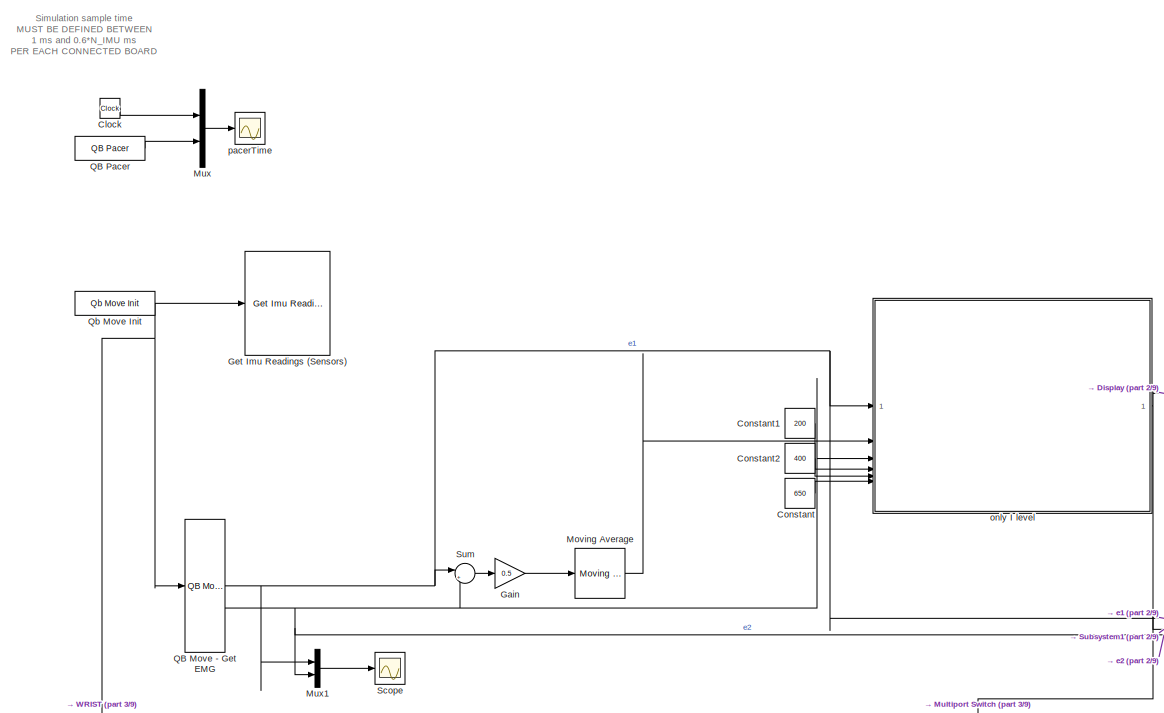
[diagram: root canvas - part 1/9, top left region]
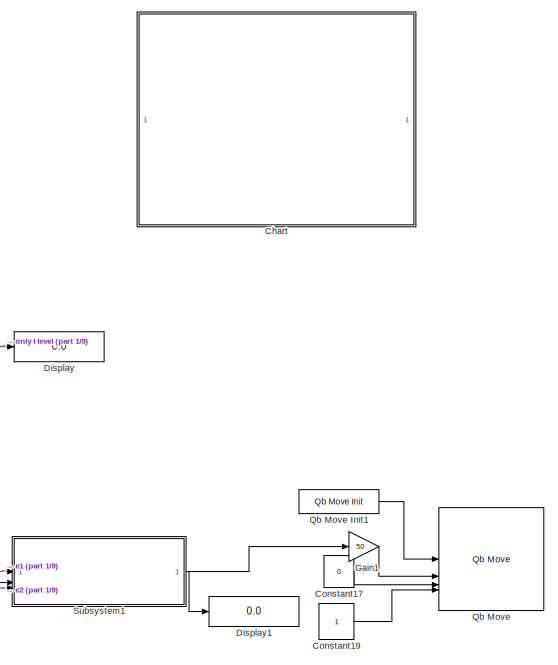
[diagram: root canvas - part 2/9, top left region]
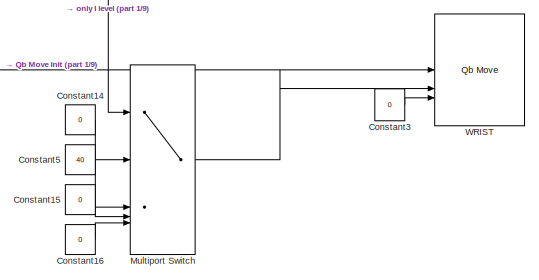
[diagram: root canvas - part 3/9, middle left region]
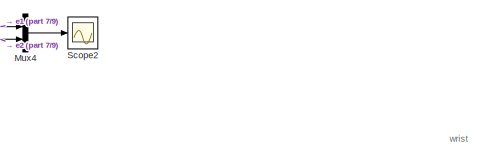
[diagram: root canvas - part 4/9, middle right region]
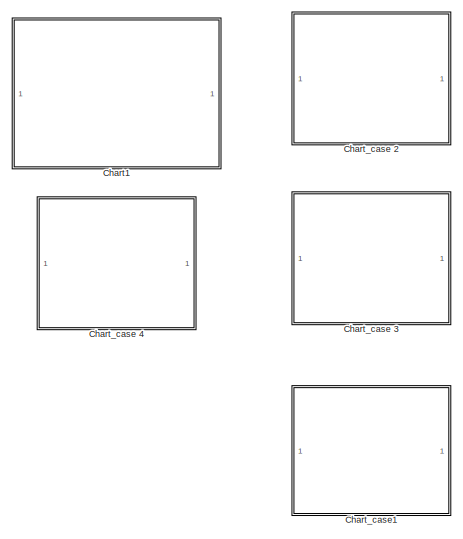
[diagram: root canvas - part 5/9, middle left region]
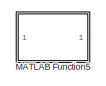
[diagram: root canvas - part 6/9, middle right region]
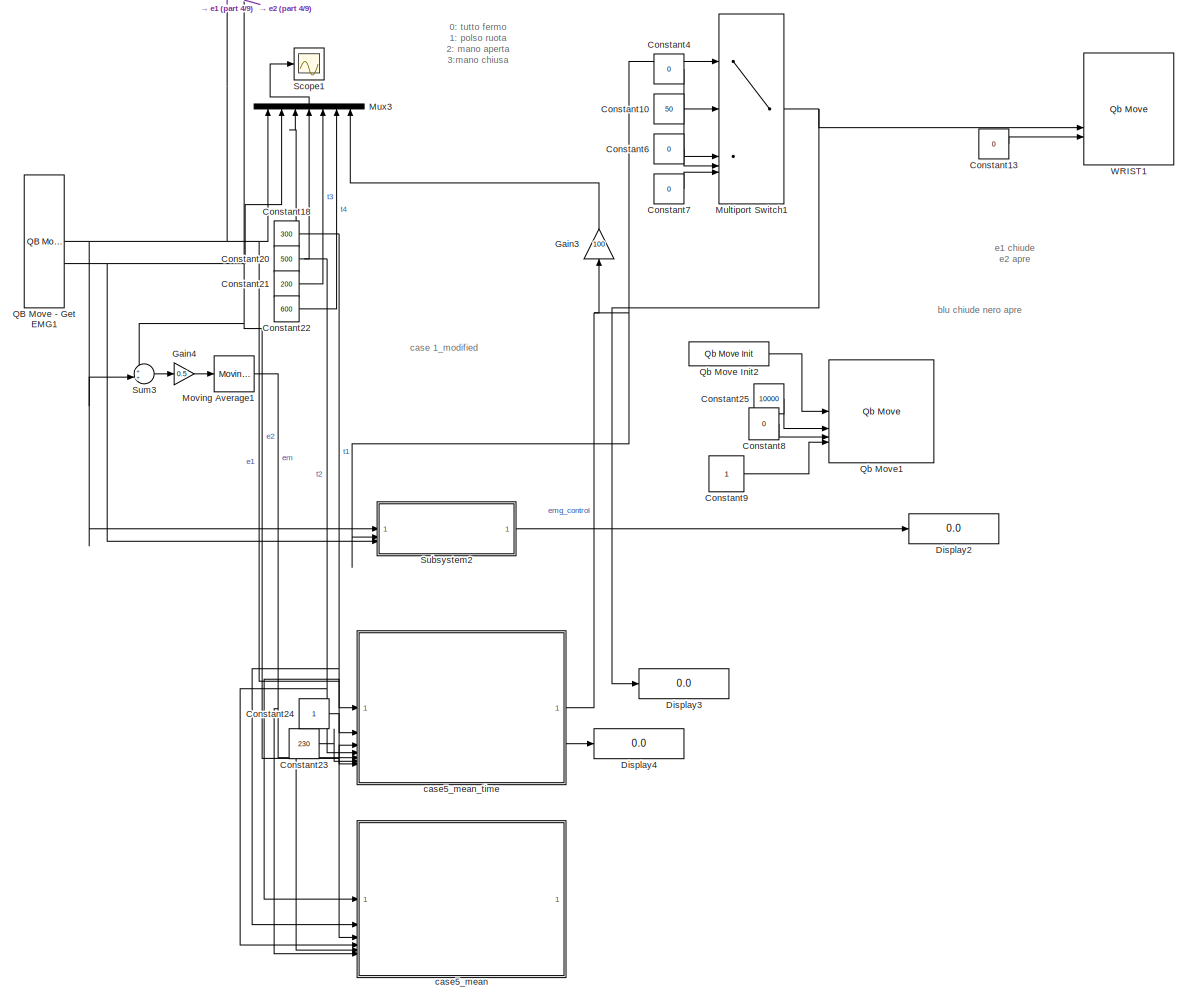
[diagram: root canvas - part 7/9, bottom right region]
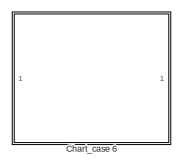
[diagram: root canvas - part 8/9, central region]
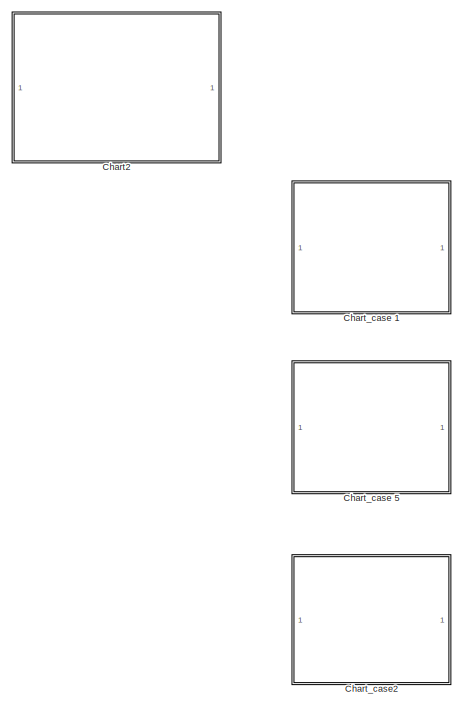
[diagram: root canvas - part 9/9, bottom right region]
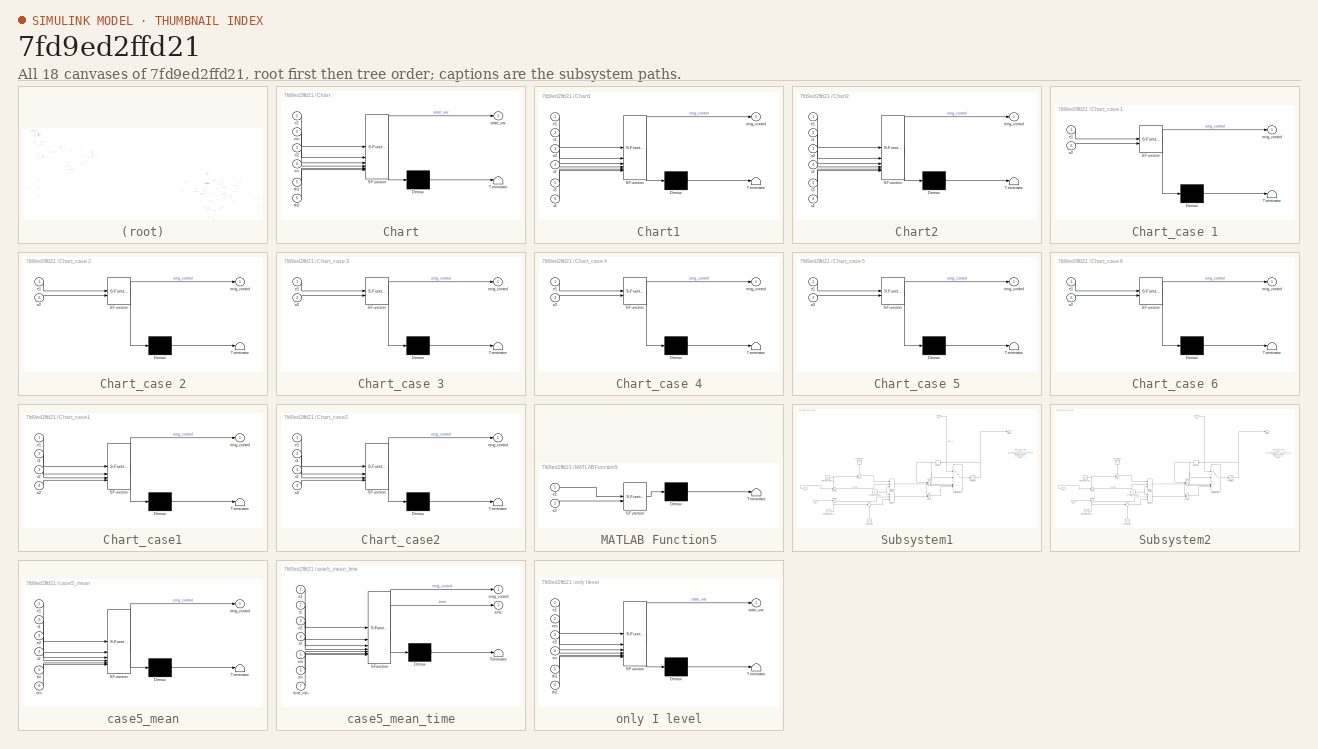
[diagram: thumbnail index - all 18 canvases of the model, root first then tree order]
MODEL slx_7fd9ed2ffd21
KIND model
CONFIG AbsTol = auto
CONFIG EnableMultiTasking = off
CONFIG FixedStep = auto
CONFIG MaxStep = auto
CONFIG MinStep = auto
CONFIG RelTol = 1e-3
CONFIG SampleTimeConstraint = Unconstrained
CONFIG SolverName = VariableStepAuto
CONFIG StartTime = 0.0
CONFIG StopTime = inf
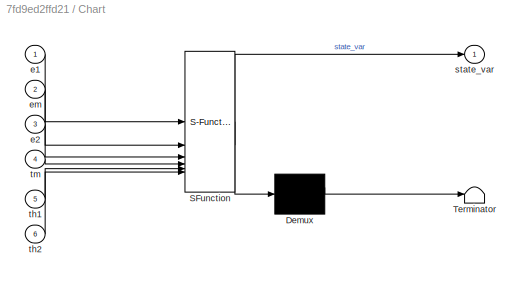
BLOCK [SubSystem] Chart
  ErrorFcn = Stateflow.Translate.translate
  PermitHierarchicalResolution = ExplicitOnly
  SFBlockType = Chart
  TreatAsAtomicUnit = on
BLOCK [Demux] Chart/ Demux 
  Outputs = 1
BLOCK [S-Function] Chart/ SFunction 
  EnableBusSupport = on
  FunctionName = sf_sfun
  PortCounts = [6 2]
  SFcnIsStateOwnerBlock = off
  SFunctionDeploymentMode = off
  Tag = Stateflow S-Function 3
BLOCK [Terminator] Chart/ Terminator 
BLOCK [Inport] Chart/e1
BLOCK [Inport] Chart/e2
  Port = 3
BLOCK [Inport] Chart/em
  Port = 2
BLOCK [Outport] Chart/state_var
BLOCK [Inport] Chart/th1
  Port = 5
BLOCK [Inport] Chart/th2
  Port = 6
BLOCK [Inport] Chart/tm
  Port = 4
BLOCK [SubSystem] Chart1
  Commented = on
  ErrorFcn = Stateflow.Translate.translate
  PermitHierarchicalResolution = ExplicitOnly
  PortSchema = {"entries":[{"content":{"sides":[{"content":{"connectorIds":["In1","In2","In4","In5","In6","In3"]},"type":"ConnectorPlacement.EquallySpacedRectSide","uuid":"bb964aad-0f33-4b15-8f2f-07cc57dca142"},{"content":{"connectorIds":["Out1"],"side":"RIGHT"},"type":"ConnectorPlacement.EquallySpacedRectSide","uuid":"3d1bf315-7cf4-4964-aaea-501116c51cbb"},{"content":{"side":"TOP"},"type":"ConnectorPlacement.Eq...<+252ch>
  SFBlockType = Chart
  TreatAsAtomicUnit = on
BLOCK [Demux] Chart1/ Demux 
  Outputs = 1
BLOCK [S-Function] Chart1/ SFunction 
  EnableBusSupport = on
  FunctionName = sf_sfun
  PortCounts = [6 2]
  SFcnIsStateOwnerBlock = off
  SFunctionDeploymentMode = off
  Tag = Stateflow S-Function 7
BLOCK [Terminator] Chart1/ Terminator 
BLOCK [Inport] Chart1/e1
BLOCK [Inport] Chart1/e2
  Port = 3
BLOCK [Outport] Chart1/emg_control
BLOCK [Inport] Chart1/t1
  Port = 2
BLOCK [Inport] Chart1/t2
  Port = 4
BLOCK [Inport] Chart1/t3
  Port = 5
BLOCK [Inport] Chart1/t4
  Port = 6
BLOCK [SubSystem] Chart2
  ErrorFcn = Stateflow.Translate.translate
  PermitHierarchicalResolution = ExplicitOnly
  PortSchema = {"entries":[{"content":{"sides":[{"content":{"connectorIds":["In1","In2","In4","In5","In6","In3"]},"type":"ConnectorPlacement.EquallySpacedRectSide","uuid":"bb964aad-0f33-4b15-8f2f-07cc57dca142"},{"content":{"connectorIds":["Out1"],"side":"RIGHT"},"type":"ConnectorPlacement.EquallySpacedRectSide","uuid":"3d1bf315-7cf4-4964-aaea-501116c51cbb"},{"content":{"side":"TOP"},"type":"ConnectorPlacement.Eq...<+252ch>
  SFBlockType = Chart
  TreatAsAtomicUnit = on
BLOCK [Demux] Chart2/ Demux 
  Outputs = 1
BLOCK [S-Function] Chart2/ SFunction 
  EnableBusSupport = on
  FunctionName = sf_sfun
  PortCounts = [6 2]
  SFcnIsStateOwnerBlock = off
  SFunctionDeploymentMode = off
  Tag = Stateflow S-Function 2
BLOCK [Terminator] Chart2/ Terminator 
BLOCK [Inport] Chart2/e1
BLOCK [Inport] Chart2/e2
  Port = 3
BLOCK [Outport] Chart2/emg_control
BLOCK [Inport] Chart2/t1
  Port = 2
BLOCK [Inport] Chart2/t2
  Port = 4
BLOCK [Inport] Chart2/t3
  Port = 5
BLOCK [Inport] Chart2/t4
  Port = 6
BLOCK [SubSystem] Chart_case 1
  ErrorFcn = Stateflow.Translate.translate
  PermitHierarchicalResolution = ExplicitOnly
  SFBlockType = Chart
  TreatAsAtomicUnit = on
BLOCK [Demux] Chart_case 1/ Demux 
  Outputs = 1
BLOCK [S-Function] Chart_case 1/ SFunction 
  EnableBusSupport = on
  FunctionName = sf_sfun
  Parameters = t1,t2
  PortCounts = [2 2]
  SFcnIsStateOwnerBlock = off
  SFunctionDeploymentMode = off
  Tag = Stateflow S-Function 4
BLOCK [Terminator] Chart_case 1/ Terminator 
BLOCK [Inport] Chart_case 1/e1
BLOCK [Inport] Chart_case 1/e2
  Port = 2
BLOCK [Outport] Chart_case 1/emg_control
BLOCK [SubSystem] Chart_case 2
  Commented = on
  ErrorFcn = Stateflow.Translate.translate
  PermitHierarchicalResolution = ExplicitOnly
  SFBlockType = Chart
  TreatAsAtomicUnit = on
BLOCK [Demux] Chart_case 2/ Demux 
  Outputs = 1
BLOCK [S-Function] Chart_case 2/ SFunction 
  EnableBusSupport = on
  FunctionName = sf_sfun
  Parameters = t1,t2
  PortCounts = [2 2]
  SFcnIsStateOwnerBlock = off
  SFunctionDeploymentMode = off
  Tag = Stateflow S-Function 8
BLOCK [Terminator] Chart_case 2/ Terminator 
BLOCK [Inport] Chart_case 2/e1
BLOCK [Inport] Chart_case 2/e2
  Port = 2
BLOCK [Outport] Chart_case 2/emg_control
BLOCK [SubSystem] Chart_case 3
  Commented = on
  ErrorFcn = Stateflow.Translate.translate
  PermitHierarchicalResolution = ExplicitOnly
  SFBlockType = Chart
  TreatAsAtomicUnit = on
BLOCK [Demux] Chart_case 3/ Demux 
  Outputs = 1
BLOCK [S-Function] Chart_case 3/ SFunction 
  EnableBusSupport = on
  FunctionName = sf_sfun
  Parameters = t1,t2
  PortCounts = [2 2]
  SFcnIsStateOwnerBlock = off
  SFunctionDeploymentMode = off
  Tag = Stateflow S-Function 9
BLOCK [Terminator] Chart_case 3/ Terminator 
BLOCK [Inport] Chart_case 3/e1
BLOCK [Inport] Chart_case 3/e2
  Port = 2
BLOCK [Outport] Chart_case 3/emg_control
BLOCK [SubSystem] Chart_case 4
  Commented = on
  ErrorFcn = Stateflow.Translate.translate
  PermitHierarchicalResolution = ExplicitOnly
  SFBlockType = Chart
  TreatAsAtomicUnit = on
BLOCK [Demux] Chart_case 4/ Demux 
  Outputs = 1
BLOCK [S-Function] Chart_case 4/ SFunction 
  EnableBusSupport = on
  FunctionName = sf_sfun
  Parameters = t1,t2
  PortCounts = [2 2]
  SFcnIsStateOwnerBlock = off
  SFunctionDeploymentMode = off
  Tag = Stateflow S-Function 6
BLOCK [Terminator] Chart_case 4/ Terminator 
BLOCK [Inport] Chart_case 4/e1
BLOCK [Inport] Chart_case 4/e2
  Port = 2
BLOCK [Outport] Chart_case 4/emg_control
BLOCK [SubSystem] Chart_case 5
  ErrorFcn = Stateflow.Translate.translate
  PermitHierarchicalResolution = ExplicitOnly
  SFBlockType = Chart
  TreatAsAtomicUnit = on
BLOCK [Demux] Chart_case 5/ Demux 
  Outputs = 1
BLOCK [S-Function] Chart_case 5/ SFunction 
  EnableBusSupport = on
  FunctionName = sf_sfun
  Parameters = t1,t2
  PortCounts = [2 2]
  SFcnIsStateOwnerBlock = off
  SFunctionDeploymentMode = off
  Tag = Stateflow S-Function 5
BLOCK [Terminator] Chart_case 5/ Terminator 
BLOCK [Inport] Chart_case 5/e1
BLOCK [Inport] Chart_case 5/e2
  Port = 2
BLOCK [Outport] Chart_case 5/emg_control
BLOCK [SubSystem] Chart_case 6
  Commented = on
  ErrorFcn = Stateflow.Translate.translate
  PermitHierarchicalResolution = ExplicitOnly
  SFBlockType = Chart
  TreatAsAtomicUnit = on
BLOCK [Demux] Chart_case 6/ Demux 
  Outputs = 1
BLOCK [S-Function] Chart_case 6/ SFunction 
  EnableBusSupport = on
  FunctionName = sf_sfun
  Parameters = t1,t2
  PortCounts = [2 2]
  SFcnIsStateOwnerBlock = off
  SFunctionDeploymentMode = off
  Tag = Stateflow S-Function 11
BLOCK [Terminator] Chart_case 6/ Terminator 
BLOCK [Inport] Chart_case 6/e1
BLOCK [Inport] Chart_case 6/e2
  Port = 2
BLOCK [Outport] Chart_case 6/emg_control
BLOCK [SubSystem] Chart_case1
  Commented = on
  ErrorFcn = Stateflow.Translate.translate
  PermitHierarchicalResolution = ExplicitOnly
  SFBlockType = Chart
  TreatAsAtomicUnit = on
BLOCK [Demux] Chart_case1/ Demux 
  Outputs = 1
BLOCK [S-Function] Chart_case1/ SFunction 
  EnableBusSupport = on
  FunctionName = sf_sfun
  PortCounts = [4 2]
  SFcnIsStateOwnerBlock = off
  SFunctionDeploymentMode = off
  Tag = Stateflow S-Function 10
BLOCK [Terminator] Chart_case1/ Terminator 
BLOCK [Inport] Chart_case1/e1
BLOCK [Inport] Chart_case1/e2
  Port = 4
BLOCK [Outport] Chart_case1/emg_control
BLOCK [Inport] Chart_case1/t1
  Port = 2
BLOCK [Inport] Chart_case1/t2
  Port = 3
BLOCK [SubSystem] Chart_case2
  ErrorFcn = Stateflow.Translate.translate
  PermitHierarchicalResolution = ExplicitOnly
  SFBlockType = Chart
  TreatAsAtomicUnit = on
BLOCK [Demux] Chart_case2/ Demux 
  Outputs = 1
BLOCK [S-Function] Chart_case2/ SFunction 
  EnableBusSupport = on
  FunctionName = sf_sfun
  PortCounts = [4 2]
  SFcnIsStateOwnerBlock = off
  SFunctionDeploymentMode = off
  Tag = Stateflow S-Function 12
BLOCK [Terminator] Chart_case2/ Terminator 
BLOCK [Inport] Chart_case2/e1
BLOCK [Inport] Chart_case2/e2
  Port = 4
BLOCK [Outport] Chart_case2/emg_control
BLOCK [Inport] Chart_case2/t1
  Port = 2
BLOCK [Inport] Chart_case2/t2
  Port = 3
BLOCK [Clock] Clock
BLOCK [Constant] Constant
  Value = 650
BLOCK [Constant] Constant1
  Value = 200
BLOCK [Constant] Constant10
  Value = 50
BLOCK [Constant] Constant13
  Value = 0
BLOCK [Constant] Constant14
  Value = 0
BLOCK [Constant] Constant15
  Value = 0
BLOCK [Constant] Constant16
  Value = 0
BLOCK [Constant] Constant17
  Value = 0
BLOCK [Constant] Constant18
  Value = 300
BLOCK [Constant] Constant19
BLOCK [Constant] Constant2
  Value = 400
BLOCK [Constant] Constant20
  Value = 500
BLOCK [Constant] Constant21
  Value = 200
BLOCK [Constant] Constant22
  Value = 600
BLOCK [Constant] Constant23
  Value = 230
BLOCK [Constant] Constant24
BLOCK [Constant] Constant25
  Value = 10000
BLOCK [Constant] Constant3
  Value = 0
BLOCK [Constant] Constant4
  Value = 0
BLOCK [Constant] Constant5
  Value = 40
BLOCK [Constant] Constant6
  Value = 0
BLOCK [Constant] Constant7
  Value = 0
BLOCK [Constant] Constant8
  Value = 0
BLOCK [Constant] Constant9
BLOCK [Display] Display
  Decimation = 1
BLOCK [Display] Display1
  Decimation = 1
BLOCK [Display] Display2
  Decimation = 1
BLOCK [Display] Display3
  Decimation = 1
BLOCK [Display] Display4
  Decimation = 1
BLOCK [Gain] Gain
  Gain = 0.5
BLOCK [Gain] Gain1
  Gain = 50
BLOCK [Gain] Gain3
  Gain = 100
  NameLocation = right
BLOCK [Gain] Gain4
  Gain = 0.5
BLOCK [Reference] Get Imu Readings (Sensors)  REF=CP_library/Get Imu Readings (Sensors)
  SourceBlock = CP_library/Get Imu Readings (Sensors)
  SourceProductName = Centro Piaggio Library
  SourceType = qb get imu reading
BLOCK [SubSystem] MATLAB Function5
  Commented = on
  ErrorFcn = Stateflow.Translate.translate
  PermitHierarchicalResolution = ExplicitOnly
  SFBlockType = MATLAB Function
  TreatAsAtomicUnit = on
BLOCK [Demux] MATLAB Function5/ Demux 
  Outputs = 1
BLOCK [S-Function] MATLAB Function5/ SFunction 
  EnableBusSupport = on
  FunctionName = sf_sfun
  PortCounts = [2 1]
  SFcnIsStateOwnerBlock = off
  SFunctionDeploymentMode = off
  Tag = Stateflow S-Function 13
BLOCK [Terminator] MATLAB Function5/ Terminator 
BLOCK [Inport] MATLAB Function5/e1
BLOCK [Inport] MATLAB Function5/e2
  Port = 2
BLOCK [Reference] Moving Average  REF=dspstat3/Moving
Average
  SourceBlock = dspstat3/Moving\nAverage
  SourceType = dsp.simulink.MovingAverage
BLOCK [Reference] Moving Average1  REF=dspstat3/Moving
Average
  SourceBlock = dspstat3/Moving\nAverage
  SourceType = dsp.simulink.MovingAverage
BLOCK [MultiPortSwitch] Multiport Switch
  DataPortOrder = Zero-based contiguous
  InputSameDT = off
  Inputs = 4
  SaturateOnIntegerOverflow = off
  zeroidx = on
BLOCK [MultiPortSwitch] Multiport Switch1
  DataPortOrder = Zero-based contiguous
  InputSameDT = off
  Inputs = 4
  SaturateOnIntegerOverflow = off
  zeroidx = on
BLOCK [Mux] Mux
  DisplayOption = bar
  Inputs = 2
BLOCK [Mux] Mux1
  DisplayOption = bar
  Inputs = 2
BLOCK [Mux] Mux3
  DisplayOption = bar
  Inputs = 7
  NameLocation = right
BLOCK [Mux] Mux4
  DisplayOption = bar
  Inputs = 2
BLOCK [Reference] QB Move - Get EMG  REF=qbmove_library/QB Move - Get EMG
  SourceBlock = qbmove_library/QB Move - Get EMG
  SourceProductName = Qb Move Library
  SourceType = qb move
BLOCK [Reference] QB Move - Get EMG1  REF=qbmove_library/QB Move - Get EMG
  SourceBlock = qbmove_library/QB Move - Get EMG
  SourceProductName = Qb Move Library
  SourceType = qb move
BLOCK [Reference] QB Pacer  REF=QB_pacer_lib/QB Pacer
  SourceBlock = QB_pacer_lib/QB Pacer
  SourceProductName = QB Pacer
  SourceType = RealTime_Pacer
BLOCK [Reference] Qb Move  REF=qbmove_library/Qb Move
  LibrarySourceBlock = qbmove_library/qbmove
  SourceBlock = qbmove_library/Qb Move
  SourceProductName = Qb Move Library
  SourceType = qb move
BLOCK [Reference] Qb Move Init  REF=qbmove_library/Qb Move Init
  NameLocation = top
  SourceBlock = qbmove_library/Qb Move Init
  SourceProductName = Qb Move Library
  SourceType = qb Init - ISS
BLOCK [Reference] Qb Move Init1  REF=qbmove_library/Qb Move Init
  NameLocation = top
  SourceBlock = qbmove_library/Qb Move Init
  SourceProductName = Qb Move Library
  SourceType = qb Init - ISS
BLOCK [Reference] Qb Move Init2  REF=qbmove_library/Qb Move Init
  NameLocation = top
  SourceBlock = qbmove_library/Qb Move Init
  SourceProductName = Qb Move Library
  SourceType = qb Init - ISS
BLOCK [Reference] Qb Move1  REF=qbmove_library/Qb Move
  LibrarySourceBlock = qbmove_library/qbmove
  SourceBlock = qbmove_library/Qb Move
  SourceProductName = Qb Move Library
  SourceType = qb move
BLOCK [Scope] Scope
  Floating = off
  NumInputPorts = 1
  ScopeSpecificationString = Simulink.scopes.TimeScopeBlockCfg('CurrentConfiguration', extmgr.ConfigurationSet(extmgr.Configuration('Core','General UI',true),extmgr.Configuration('Core','Source UI',true),extmgr.Configuration('Sources','WiredSimulink',true,'DataLoggingVariableName','ScopeData1'),extmgr.Configuration('Visuals','Time Domain',true,'SerializedDisplays',{struct('MinYLimReal','-125.75','MaxYLimReal','1151.75','YLabe...<+1414ch>
BLOCK [Scope] Scope1
  Floating = off
  NumInputPorts = 1
  ScopeSpecificationString = Simulink.scopes.TimeScopeBlockCfg('CurrentConfiguration', extmgr.ConfigurationSet(extmgr.Configuration('Core','General UI',true),extmgr.Configuration('Core','Source UI',true),extmgr.Configuration('Sources','WiredSimulink',true,'DataLoggingVariableName','ScopeData1'),extmgr.Configuration('Visuals','Time Domain',true,'SerializedDisplays',{struct('MinYLimReal','-128.00000','MaxYLimReal','1152.00000',...<+1807ch>
BLOCK [Scope] Scope2
  Floating = off
  NumInputPorts = 1
  ScopeSpecificationString = Simulink.scopes.TimeScopeBlockCfg('CurrentConfiguration', extmgr.ConfigurationSet(extmgr.Configuration('Core','General UI',true),extmgr.Configuration('Core','Source UI',true),extmgr.Configuration('Sources','WiredSimulink',true,'DataLoggingVariableName','ScopeData2'),extmgr.Configuration('Visuals','Time Domain',true,'SerializedDisplays',{struct('MinYLimReal','-128.00000','MaxYLimReal','1152.00000',...<+1406ch>
BLOCK [SubSystem] Subsystem1
  ShowPortLabels = SignalName
BLOCK [Constant] Subsystem1/2*EMG_speed1
  Value = 100
BLOCK [Constant] Subsystem1/Constant18
  NameLocation = right
  Value = 1024
BLOCK [Constant] Subsystem1/Constant22
  NameLocation = left
  Value = 1024
BLOCK [Product] Subsystem1/Divide2
  Inputs = /**
BLOCK [Product] Subsystem1/Divide3
  Inputs = **/
BLOCK [Constant] Subsystem1/EMG_threshold_3
  Value = 200
BLOCK [Constant] Subsystem1/EMG_threshold_4
  Value = 200
BLOCK [Inport] Subsystem1/In2
  Port = 2
BLOCK [Memory] Subsystem1/Memory1
BLOCK [MultiPortSwitch] Subsystem1/Multiport Switch1
  DataPortOrder = Zero-based contiguous
  InputSameDT = off
  Inputs = 4
  SaturateOnIntegerOverflow = off
  zeroidx = on
BLOCK [Outport] Subsystem1/Out1
BLOCK [Saturate] Subsystem1/Saturation1
  LowerLimit = 0
  UpperLimit = 17500
BLOCK [Sum] Subsystem1/Sum10
  Inputs = -+|
BLOCK [Sum] Subsystem1/Sum11
  Inputs = +-|
BLOCK [Sum] Subsystem1/Sum12
  IconShape = rectangular
  Inputs = +-
BLOCK [Sum] Subsystem1/Sum13
  Inputs = |+-
BLOCK [Sum] Subsystem1/Sum14
  Inputs = |-+
BLOCK [Sum] Subsystem1/Sum9
  IconShape = rectangular
BLOCK [Inport] Subsystem1/e1
BLOCK [Inport] Subsystem1/e2
  Port = 3
BLOCK [SubSystem] Subsystem2
  ShowPortLabels = SignalName
BLOCK [Constant] Subsystem2/2*EMG_speed1
  Value = 100
BLOCK [Constant] Subsystem2/Constant18
  NameLocation = right
  Value = 1024
BLOCK [Constant] Subsystem2/Constant22
  NameLocation = left
  Value = 1024
BLOCK [Product] Subsystem2/Divide2
  Inputs = /**
BLOCK [Product] Subsystem2/Divide3
  Inputs = **/
BLOCK [Constant] Subsystem2/EMG_threshold_3
  Value = 200
BLOCK [Constant] Subsystem2/EMG_threshold_4
  Value = 200
BLOCK [Inport] Subsystem2/In2
  Port = 2
BLOCK [Memory] Subsystem2/Memory1
BLOCK [MultiPortSwitch] Subsystem2/Multiport Switch1
  DataPortOrder = Zero-based contiguous
  InputSameDT = off
  Inputs = 4
  SaturateOnIntegerOverflow = off
  zeroidx = on
BLOCK [Outport] Subsystem2/Out1
BLOCK [Saturate] Subsystem2/Saturation1
  LowerLimit = 0
  UpperLimit = 17500
BLOCK [Sum] Subsystem2/Sum10
  Inputs = -+|
BLOCK [Sum] Subsystem2/Sum11
  Inputs = +-|
BLOCK [Sum] Subsystem2/Sum12
  IconShape = rectangular
  Inputs = +-
BLOCK [Sum] Subsystem2/Sum13
  Inputs = |+-
BLOCK [Sum] Subsystem2/Sum14
  Inputs = |-+
BLOCK [Sum] Subsystem2/Sum9
  IconShape = rectangular
BLOCK [Inport] Subsystem2/e1
BLOCK [Inport] Subsystem2/e2
  Port = 3
BLOCK [Sum] Sum
  Inputs = |++
BLOCK [Sum] Sum3
  Inputs = ++|
BLOCK [Reference] WRIST  REF=qbmove_library/Qb Move
  SourceBlock = qbmove_library/Qb Move
  SourceProductName = Qb Move Library
  SourceType = qb move
BLOCK [Reference] WRIST1  REF=qbmove_library/Qb Move
  SourceBlock = qbmove_library/Qb Move
  SourceProductName = Qb Move Library
  SourceType = qb move
BLOCK [SubSystem] case5_mean
  ErrorFcn = Stateflow.Translate.translate
  PermitHierarchicalResolution = ExplicitOnly
  PortSchema = {"entries":[{"content":{"sides":[{"content":{"connectorIds":["In1","In2","In4","In6","In5","In3"]},"type":"ConnectorPlacement.EquallySpacedRectSide","uuid":"bb964aad-0f33-4b15-8f2f-07cc57dca142"},{"content":{"connectorIds":["Out1"],"side":"RIGHT"},"type":"ConnectorPlacement.EquallySpacedRectSide","uuid":"3d1bf315-7cf4-4964-aaea-501116c51cbb"},{"content":{"side":"TOP"},"type":"ConnectorPlacement.Eq...<+252ch>
  SFBlockType = Chart
  TreatAsAtomicUnit = on
BLOCK [Demux] case5_mean/ Demux 
  Outputs = 1
BLOCK [S-Function] case5_mean/ SFunction 
  EnableBusSupport = on
  FunctionName = sf_sfun
  PortCounts = [6 2]
  SFcnIsStateOwnerBlock = off
  SFunctionDeploymentMode = off
  Tag = Stateflow S-Function 14
BLOCK [Terminator] case5_mean/ Terminator 
BLOCK [Inport] case5_mean/e1
BLOCK [Inport] case5_mean/e2
  Port = 3
BLOCK [Inport] case5_mean/em
  Port = 6
BLOCK [Outport] case5_mean/emg_control
BLOCK [Inport] case5_mean/t1
  Port = 2
BLOCK [Inport] case5_mean/t2
  Port = 4
BLOCK [Inport] case5_mean/tm
  Port = 5
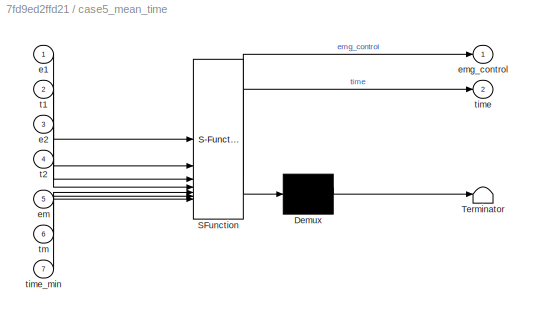
BLOCK [SubSystem] case5_mean_time
  ErrorFcn = Stateflow.Translate.translate
  PermitHierarchicalResolution = ExplicitOnly
  PortSchema = {"entries":[{"content":{"sides":[{"content":{"connectorIds":["In1","In2","In4","In5","In6","In7","In3"]},"type":"ConnectorPlacement.EquallySpacedRectSide","uuid":"bb964aad-0f33-4b15-8f2f-07cc57dca142"},{"content":{"connectorIds":["Out1","Out2"],"side":"RIGHT"},"type":"ConnectorPlacement.EquallySpacedRectSide","uuid":"3d1bf315-7cf4-4964-aaea-501116c51cbb"},{"content":{"side":"TOP"},"type":"Connecto...<+265ch>
  SFBlockType = Chart
  TreatAsAtomicUnit = on
BLOCK [Demux] case5_mean_time/ Demux 
  Outputs = 1
BLOCK [S-Function] case5_mean_time/ SFunction 
  EnableBusSupport = on
  FunctionName = sf_sfun
  PortCounts = [7 3]
  SFcnIsStateOwnerBlock = off
  SFunctionDeploymentMode = off
  Tag = Stateflow S-Function 15
BLOCK [Terminator] case5_mean_time/ Terminator 
BLOCK [Inport] case5_mean_time/e1
BLOCK [Inport] case5_mean_time/e2
  Port = 3
BLOCK [Inport] case5_mean_time/em
  Port = 5
BLOCK [Outport] case5_mean_time/emg_control
BLOCK [Inport] case5_mean_time/t1
  Port = 2
BLOCK [Inport] case5_mean_time/t2
  Port = 4
BLOCK [Outport] case5_mean_time/time
  Port = 2
BLOCK [Inport] case5_mean_time/time_min
  Port = 7
BLOCK [Inport] case5_mean_time/tm
  Port = 6
BLOCK [SubSystem] only I level
  ErrorFcn = Stateflow.Translate.translate
  PermitHierarchicalResolution = ExplicitOnly
  SFBlockType = Chart
  TreatAsAtomicUnit = on
BLOCK [Demux] only I level/ Demux 
  Outputs = 1
BLOCK [S-Function] only I level/ SFunction 
  EnableBusSupport = on
  FunctionName = sf_sfun
  PortCounts = [6 2]
  SFcnIsStateOwnerBlock = off
  SFunctionDeploymentMode = off
  Tag = Stateflow S-Function 1
BLOCK [Terminator] only I level/ Terminator 
BLOCK [Inport] only I level/e1
BLOCK [Inport] only I level/e2
  Port = 3
BLOCK [Inport] only I level/em
  Port = 2
BLOCK [Outport] only I level/state_var
BLOCK [Inport] only I level/th1
  Port = 5
BLOCK [Inport] only I level/th2
  Port = 6
BLOCK [Inport] only I level/tm
  Port = 4
BLOCK [Scope] pacerTime
  Floating = off
  NumInputPorts = 1
  ScopeSpecificationString = Simulink.scopes.TimeScopeBlockCfg('CurrentConfiguration', extmgr.ConfigurationSet(extmgr.Configuration('Core','General UI',true),extmgr.Configuration('Core','Source UI',true),extmgr.Configuration('Sources','WiredSimulink',true,'DataLoggingSaveFormat','Array','DataLoggingDecimation','1','DataLoggingDecimateData',true),extmgr.Configuration('Visuals','Time Domain',true,'SerializedDisplays',{struct('M...<+1503ch>
ANNOTATION (root): e1 chiude e2 apre
ANNOTATION (root): wrist
ANNOTATION (root): 0: tutto fermo 1: polso ruota 2: mano aperta 3:mano chiusa
ANNOTATION (root): case 1_modified
ANNOTATION (root): blu chiude nero apre
ANNOTATION (root): Simulation sample time MUST BE DEFINED BETWEEN 1 ms and 0.6*N_IMU ms PER EACH CONNECTED BOARD
ANNOTATION Subsystem1: switch (current_emg) { case 0: // Look for the first EMG passing the threshold if (err_emg_1 > 0) { current_emg = 1; break; } if (err_emg_2 > 0) { current_emg = 2; break; } break; case 1: // EMG 1 is first if (err_emg_1 < 0) { current_emg = 0; break; } g_ref.pos[0] += (err_emg_1 * g_mem.emg_speed * 2) / (1024 - c_mem.emg_threshold[0]); break; case 2: // EMG 2 is first if (err_emg_2 < 0) { current_...<+127ch>
ANNOTATION Subsystem2: switch (current_emg) { case 0: // Look for the first EMG passing the threshold if (err_emg_1 > 0) { current_emg = 1; break; } if (err_emg_2 > 0) { current_emg = 2; break; } break; case 1: // EMG 1 is first if (err_emg_1 < 0) { current_emg = 0; break; } g_ref.pos[0] += (err_emg_1 * g_mem.emg_speed * 2) / (1024 - c_mem.emg_threshold[0]); break; case 2: // EMG 2 is first if (err_emg_2 < 0) { current_...<+127ch>
LINE Clock:1 -> Mux:1
LINE Constant10:1 -> Multiport Switch1:3
LINE Constant13:1 -> WRIST1:3
LINE Constant14:1 -> Multiport Switch:2
LINE Constant15:1 -> Multiport Switch:4
LINE Constant16:1 -> Multiport Switch:5
LINE Constant17:1 -> Qb Move:3
NET Constant18:1 -> Mux3:3, case5_mean:2, case5_mean_time:2
LINE Constant19:1 -> Qb Move:4
LINE Constant1:1 -> only I level:4
NET Constant20:1 -> Mux3:4, case5_mean:4, case5_mean_time:4
LINE Constant21:1 -> Mux3:5
LINE Constant22:1 -> Mux3:6
NET Constant23:1 -> case5_mean:5, case5_mean_time:6
LINE Constant24:1 -> case5_mean_time:7
LINE Constant25:1 -> Qb Move1:2
LINE Constant2:1 -> only I level:5
LINE Constant3:1 -> WRIST:3
LINE Constant4:1 -> Multiport Switch1:2
LINE Constant5:1 -> Multiport Switch:3
LINE Constant6:1 -> Multiport Switch1:4
LINE Constant7:1 -> Multiport Switch1:5
LINE Constant8:1 -> Qb Move1:3
LINE Constant9:1 -> Qb Move1:4
LINE Constant:1 -> only I level:6
LINE Gain1:1 -> Qb Move:2
LINE Gain3:1 -> Mux3:7
LINE Gain4:1 -> Moving Average1:1
LINE Gain:1 -> Moving Average:1
NET Moving Average1:1 -> case5_mean:6, case5_mean_time:5
LINE Moving Average:1 -> only I level:2
NET Multiport Switch1:1 -> Display3:1, WRIST1:2
LINE Multiport Switch:1 -> WRIST:2
LINE Mux1:1 -> Scope:1
LINE Mux3:1 -> Scope1:1
LINE Mux4:1 -> Scope2:1
LINE Mux:1 -> pacerTime:1
NET QB Move - Get EMG1:1 -> Mux3:1, Mux4:1, Subsystem2:1, Sum3:2, case5_mean:1, case5_mean_time:1
NET QB Move - Get EMG1:2 -> Mux3:2, Mux4:2, Subsystem2:3, Sum3:1, case5_mean:3, case5_mean_time:3
NET QB Move - Get EMG:1 -> Mux1:1, Subsystem1:1, Sum:1, only I level:1
NET QB Move - Get EMG:2 -> Mux1:2, Subsystem1:3, Sum:2, only I level:3
LINE QB Pacer:1 -> Mux:2
LINE Qb Move Init1:1 -> Qb Move:1
LINE Qb Move Init2:1 -> Qb Move1:1
NET Qb Move Init:1 -> Get Imu Readings (Sensors):1, QB Move - Get EMG:1, WRIST:1
NET Subsystem1/2*EMG_speed1:1 -> Subsystem1/Divide2:3, Subsystem1/Divide3:1
LINE Subsystem1/Constant18:1 -> Subsystem1/Sum14:2
LINE Subsystem1/Constant22:1 -> Subsystem1/Sum11:1
LINE Subsystem1/Divide2:1 -> Subsystem1/Sum9:2
LINE Subsystem1/Divide3:1 -> Subsystem1/Sum12:2
NET Subsystem1/EMG_threshold_3:1 -> Subsystem1/Sum10:1, Subsystem1/Sum11:2
NET Subsystem1/EMG_threshold_4:1 -> Subsystem1/Sum13:2, Subsystem1/Sum14:1
LINE Subsystem1/In2:1 -> Subsystem1/Multiport Switch1:1
NET Subsystem1/Memory1:1 -> Subsystem1/Multiport Switch1:2, Subsystem1/Multiport Switch1:3, Subsystem1/Sum12:1, Subsystem1/Sum9:1
LINE Subsystem1/Multiport Switch1:1 -> Subsystem1/Saturation1:1
NET Subsystem1/Saturation1:1 -> Subsystem1/Memory1:1, Subsystem1/Out1:1
LINE Subsystem1/Sum10:1 -> Subsystem1/Divide2:2
LINE Subsystem1/Sum11:1 -> Subsystem1/Divide2:1
LINE Subsystem1/Sum12:1 -> Subsystem1/Multiport Switch1:5
LINE Subsystem1/Sum13:1 -> Subsystem1/Divide3:2
LINE Subsystem1/Sum14:1 -> Subsystem1/Divide3:3
LINE Subsystem1/Sum9:1 -> Subsystem1/Multiport Switch1:4
LINE Subsystem1/e1:1 -> Subsystem1/Sum10:2
LINE Subsystem1/e2:1 -> Subsystem1/Sum13:1
NET Subsystem1:1 -> Display1:1, Gain1:1
NET Subsystem2/2*EMG_speed1:1 -> Subsystem2/Divide2:3, Subsystem2/Divide3:1
LINE Subsystem2/Constant18:1 -> Subsystem2/Sum14:2
LINE Subsystem2/Constant22:1 -> Subsystem2/Sum11:1
LINE Subsystem2/Divide2:1 -> Subsystem2/Sum9:2
LINE Subsystem2/Divide3:1 -> Subsystem2/Sum12:2
NET Subsystem2/EMG_threshold_3:1 -> Subsystem2/Sum10:1, Subsystem2/Sum11:2
NET Subsystem2/EMG_threshold_4:1 -> Subsystem2/Sum13:2, Subsystem2/Sum14:1
LINE Subsystem2/In2:1 -> Subsystem2/Multiport Switch1:1
NET Subsystem2/Memory1:1 -> Subsystem2/Multiport Switch1:2, Subsystem2/Multiport Switch1:3, Subsystem2/Sum12:1, Subsystem2/Sum9:1
LINE Subsystem2/Multiport Switch1:1 -> Subsystem2/Saturation1:1
NET Subsystem2/Saturation1:1 -> Subsystem2/Memory1:1, Subsystem2/Out1:1
LINE Subsystem2/Sum10:1 -> Subsystem2/Divide2:2
LINE Subsystem2/Sum11:1 -> Subsystem2/Divide2:1
LINE Subsystem2/Sum12:1 -> Subsystem2/Multiport Switch1:5
LINE Subsystem2/Sum13:1 -> Subsystem2/Divide3:2
LINE Subsystem2/Sum14:1 -> Subsystem2/Divide3:3
LINE Subsystem2/Sum9:1 -> Subsystem2/Multiport Switch1:4
LINE Subsystem2/e1:1 -> Subsystem2/Sum10:2
LINE Subsystem2/e2:1 -> Subsystem2/Sum13:1
LINE Subsystem2:1 -> Display2:1
LINE Sum3:1 -> Gain4:1
LINE Sum:1 -> Gain:1
NET case5_mean_time:1 -> Gain3:1, Multiport Switch1:1, Subsystem2:2
LINE case5_mean_time:2 -> Display4:1
NET only I level:1 -> Display:1, Multiport Switch:1, Subsystem1:2
note: NET lines group one-source signal fan-out (src -> all destinations, sorted); 1:1 wires keep LINE
CHART Chart_case 1 states=4 transitions=7
  STATE_LABEL 'State0\nentry: emg_control =0;\n'
  STATE_LABEL 'State1\nentry: emg_control=1;'
  STATE_LABEL 'State2\nentry: emg_control =2;'
  STATE_LABEL 'State3\nentry: emg_control=3;'
CHART Chart_case 5 states=4 transitions=7
  STATE_LABEL 'State0\nentry: emg_control =0;\n'
  STATE_LABEL 'State1\nentry: emg_control=1;'
  STATE_LABEL 'State2\nentry: emg_control =2;'
  STATE_LABEL 'State3\nentry: emg_control=3;'
CHART Chart_case 4 states=4 transitions=9
  STATE_LABEL 'State0\nentry: emg_control =0;\n'
  STATE_LABEL 'State1\nentry: emg_control=1;'
  STATE_LABEL 'State2\nentry: emg_control =2;'
  STATE_LABEL 'State3\nentry: emg_control=3;'
CHART Chart1 states=4 transitions=13
  STATE_LABEL 'State0\nentry: emg_control =0;\n'
  STATE_LABEL 'State1\nentry: emg_control=1;'
  STATE_LABEL 'State2\nentry: emg_control =2;'
  STATE_LABEL 'State3\nentry: emg_control=3;'
CHART Chart_case 2 states=4 transitions=7
  STATE_LABEL 'State0\nentry: emg_control =0;\n'
  STATE_LABEL 'State1\nentry: emg_control=1;'
  STATE_LABEL 'State2\nentry: emg_control =2;'
  STATE_LABEL 'State3\nentry: emg_control=3;'
CHART Chart_case 3 states=4 transitions=7
  STATE_LABEL 'State0\nentry: emg_control =0;\n'
  STATE_LABEL 'State1\nentry: emg_control=1;'
  STATE_LABEL 'State2\nentry: emg_control =2;'
  STATE_LABEL 'State3\nentry: emg_control=3;'
CHART Chart_case1 states=4 transitions=9
  STATE_LABEL 'State0\nentry: emg_control =0;\n'
  STATE_LABEL 'State1\nentry: emg_control=1;'
  STATE_LABEL 'State2\nentry: emg_control =2;'
  STATE_LABEL 'State3\nentry: emg_control=3;'
CHART Chart_case 6 states=4 transitions=9
  STATE_LABEL 'State0\nentry: emg_control =0;\n'
  STATE_LABEL 'State1\nentry: emg_control=1;'
  STATE_LABEL 'State2\nentry: emg_control =2;'
  STATE_LABEL 'State3\nentry: emg_control=3;'
CHART Chart_case2 states=4 transitions=9
  STATE_LABEL 'State0\nentry: emg_control =0;\n'
  STATE_LABEL 'State1\nentry: emg_control=1;'
  STATE_LABEL 'State2\nentry: emg_control =2;'
  STATE_LABEL 'State3\nentry: emg_control=3;'
CHART MATLAB Function5 states=1 transitions=1
  STATE_LABEL 'eML_blk_kernel()'
  STATE_LABEL "SCRIPT:\nfunction  plot_emg(e1,e2)\nfigure(1)\nhold on\n\nyline(ax, 0.5, '--k', 'Linea di riferimento 1');\nyline(ax, -0.5, '--k', 'Linea di riferimento 2');\nplot (e1)\nend\n\n% persistent fig ax label_handle time\n% \n% % Inizializza il grafico al primo ciclo\n% if isempty(fig)\n%     fig = figure;\n%     ax = axes('Parent', fig);\n%     hold(ax, 'on');\n%     plot(ax, NaN, NaN, 'b', 'DisplayName', 'e1');\n%     ...<+1459ch>"
CHART case5_mean states=4 transitions=9
  STATE_LABEL 'State0\nentry: emg_control =0;\n'
  STATE_LABEL 'State1\nentry: emg_control=1;'
  STATE_LABEL 'State2\nentry: emg_control =2;'
  STATE_LABEL 'State3\nentry: emg_control=3;'
CHART case5_mean_time states=4 transitions=7
  STATE_LABEL 'State0\nentry: emg_control =0;\nentry: time =0;\nduring: time = time +1;\nexit: time=0;\n'
  STATE_LABEL 'State1\nentry: emg_control=1;'
  STATE_LABEL 'State2\nentry: emg_control =2;'
  STATE_LABEL 'State3\nentry: emg_control=3;'
CHART only I level states=8 transitions=7
  STATE_LABEL '<!DOCTYPE HTML PUBLIC "-//W3C//DTD HTML 4.0//EN" "http://www.w3.org/TR/REC-html40/strict.dtd">\n<html><head><meta name="qrichtext" content="1" /><style type="text/css">\np, li { white-space: pre-wrap; }\n</style></head><body align="left" style=" font-family:\'Helvetica\'; font-size:12px; font-weight:400; font-style:normal;">\n<p align="left" style=" margin-top:0px; margin-bottom:0px; margin-left:0px; ma...<+140ch>'
  STATE_LABEL '<!DOCTYPE HTML PUBLIC "-//W3C//DTD HTML 4.0//EN" "http://www.w3.org/TR/REC-html40/strict.dtd">\n<html><head><meta name="qrichtext" content="1" /><style type="text/css">\np, li { white-space: pre-wrap; }\n</style></head><body align="left" style=" font-family:\'Helvetica\'; font-size:12px; font-weight:400; font-style:normal;">\n<p align="left" style=" margin-top:0px; margin-bottom:0px; margin-left:0px; ma...<+144ch>'
  STATE_LABEL 'state0\nentry: state_var = 0;\n'
  STATE_LABEL 'state1\nentry: state_var=1;\n'
  STATE_LABEL '<!DOCTYPE HTML PUBLIC "-//W3C//DTD HTML 4.0//EN" "http://www.w3.org/TR/REC-html40/strict.dtd">\n<html><head><meta name="qrichtext" content="1" /><style type="text/css">\np, li { white-space: pre-wrap; }\n</style></head><body align="left" style=" font-family:\'Helvetica\'; font-size:12px; font-weight:400; font-style:normal;">\n<p align="left" style=" margin-top:0px; margin-bottom:0px; margin-left:0px; ma...<+147ch>'  <repeated x4 — deduplicated; at blocks: only I level, Chart>
  STATE_LABEL 'state2\nentry: state_var=2;\n'
  STATE_LABEL 'state3\nentry: state_var=3;\n'
CHART Chart2 states=4 transitions=13
  STATE_LABEL 'State0\nentry: emg_control =0;\n'
  STATE_LABEL 'State1\nentry: emg_control=1;'
  STATE_LABEL 'State2\nentry: emg_control =2;'
  STATE_LABEL 'State3\nentry: emg_control=3;'
CHART Chart states=8 transitions=11
  STATE_LABEL '<!DOCTYPE HTML PUBLIC "-//W3C//DTD HTML 4.0//EN" "http://www.w3.org/TR/REC-html40/strict.dtd">\n<html><head><meta name="qrichtext" content="1" /><style type="text/css">\np, li { white-space: pre-wrap; }\n</style></head><body align="left" style=" font-family:\'Helvetica\'; font-size:12px; font-weight:400; font-style:normal;">\n<p align="left" style=" margin-top:0px; margin-bottom:0px; margin-left:0px; ma...<+140ch>'
  STATE_LABEL '<!DOCTYPE HTML PUBLIC "-//W3C//DTD HTML 4.0//EN" "http://www.w3.org/TR/REC-html40/strict.dtd">\n<html><head><meta name="qrichtext" content="1" /><style type="text/css">\np, li { white-space: pre-wrap; }\n</style></head><body align="left" style=" font-family:\'Helvetica\'; font-size:12px; font-weight:400; font-style:normal;">\n<p align="left" style=" margin-top:0px; margin-bottom:0px; margin-left:0px; ma...<+144ch>'
  STATE_LABEL 'state0\nentry: state_var = 0;\n'
  STATE_LABEL 'state1\nentry: state_var=1;\n'
  STATE_LABEL 'state2\nentry: state_var=2;\n'
  STATE_LABEL 'state3\nentry: state_var=3;\n'
CHART  states=0 transitions=0
CHART  states=0 transitions=0
CHART  states=0 transitions=0
CHART  states=0 transitions=0
CHART  states=0 transitions=0
CHART  states=0 transitions=0
CHART  states=0 transitions=0
CHART  states=0 transitions=0
CHART  states=0 transitions=0
CHART  states=0 transitions=0
CHART  states=0 transitions=0
CHART  states=0 transitions=0
CHART  states=0 transitions=0
CHART  states=0 transitions=0
CHART  states=0 transitions=0
